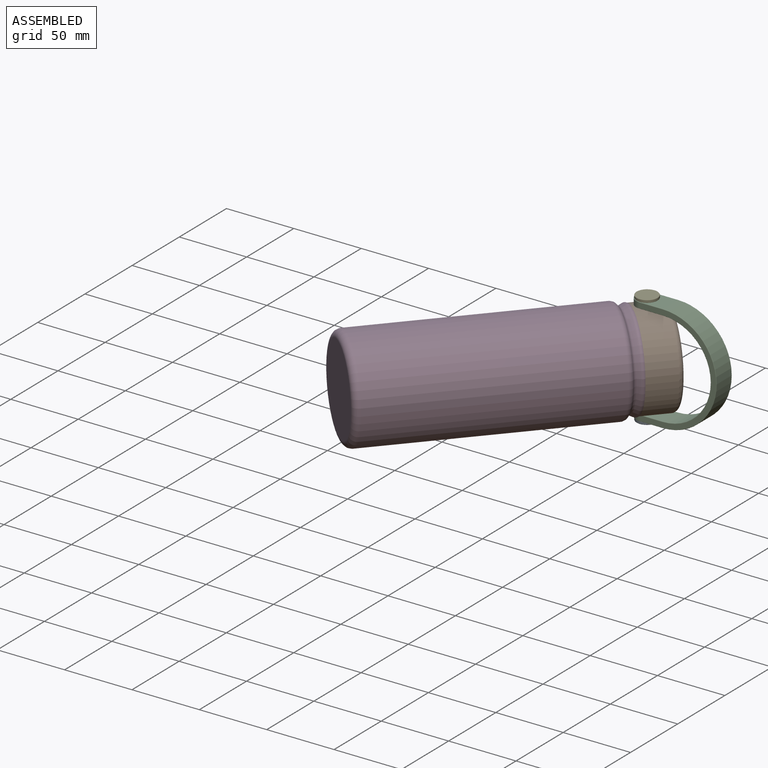
[diagram: assembled view]
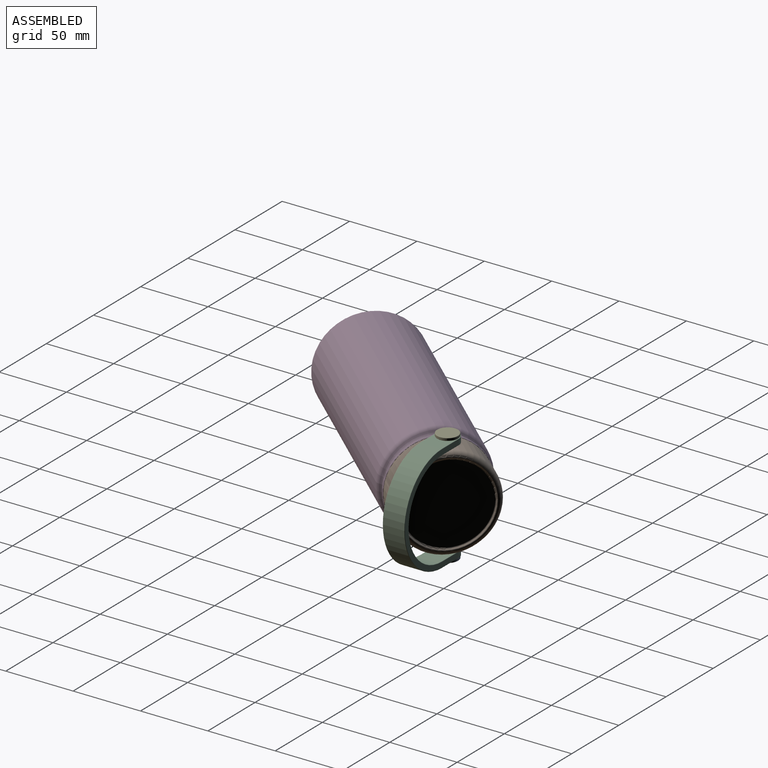
[diagram: assembled view, second angle]
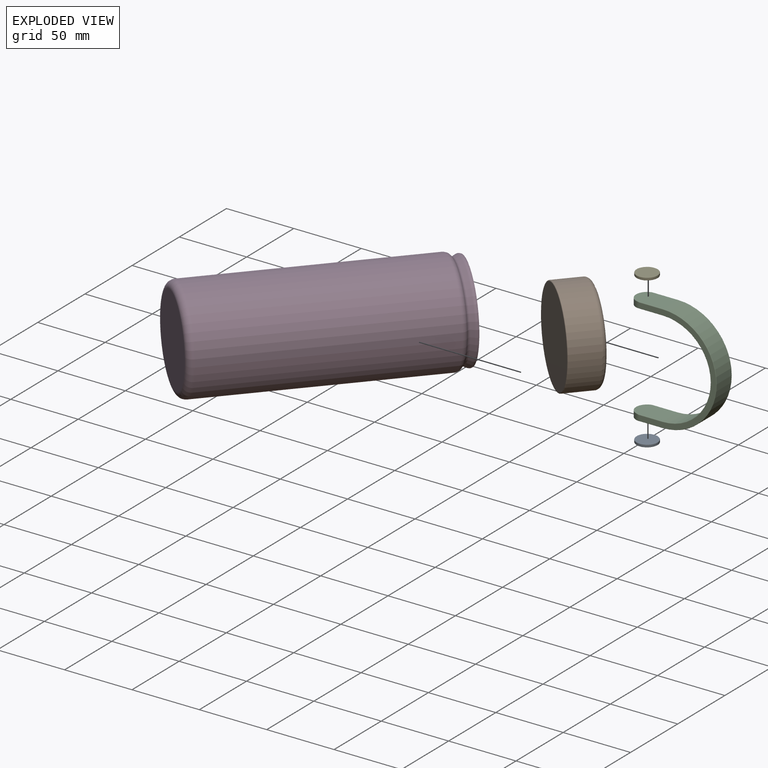
[diagram: exploded view]
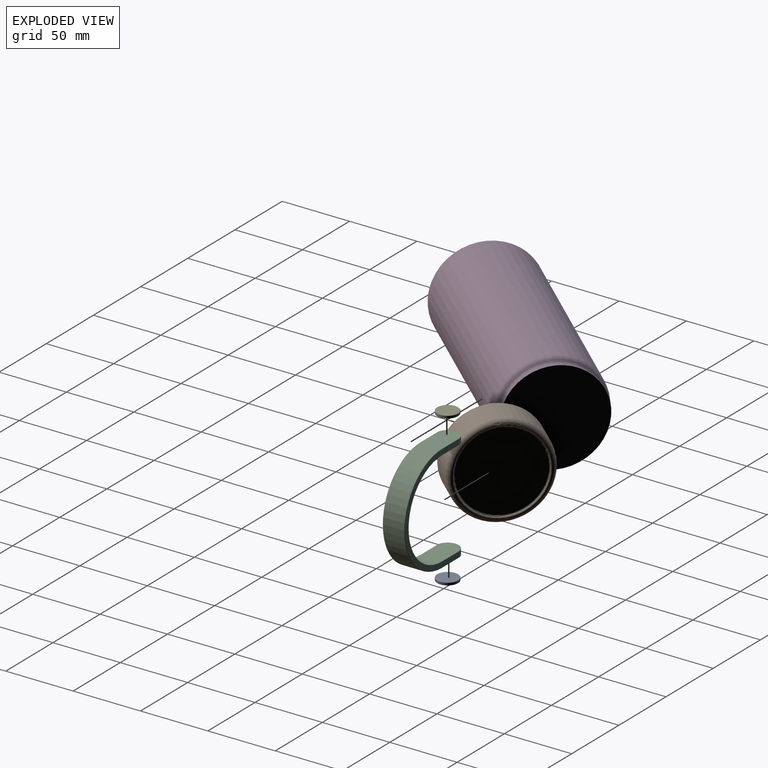
[diagram: exploded view, second angle]
ASSEMBLY  parts=5 mates=3
PART A: 5 faces, bbox 16.9x2x16.9 mm
  f0: cylinder r=7.82mm len=15.65mm, axis (0,1,0), area 73.7mm2, adj f3,f4
  f1: plane 15.14x15.14mm, normal (0,-1,0), area 180mm2, adj f4
  f2: plane 15.14x15.14mm, normal (0,1,0), area 180mm2, adj f3
  f3: torus R=7.57mm, axis (0,-1,0), area 19.4mm2, adj f0,f2
  f4: torus R=7.57mm, axis (0,-1,0), area 19.4mm2, adj f0,f1
PART B: 7 faces, bbox 75.4x75.4x25.4 mm
  f0: cylinder r=34.81mm len=69.62mm, axis (0,0,-1), area 4600mm2, adj f2,f3
  f1: plane 68.35x68.35mm, normal (0,0,-1), area 3669.3mm2, adj f3
  f2: torus R=31.33mm, axis (0,0,1), area 1152.1mm2, adj f0,f5
  f3: torus R=34.18mm, axis (0,0,1), area 216.7mm2, adj f0,f1
  f4: plane 58.8x58.8mm, normal (0,0,1), area 2715.4mm2, adj f6
  f5: torus R=31.33mm, axis (0,0,1), area 199.7mm2, adj f2,f6
  f6: torus R=29.4mm, axis (0,0,-1), area 236.6mm2, adj f4,f5
PART C: 22 faces, bbox 86.5x16.3x68.6 mm
  f0: cylinder r=0.25mm len=19.28mm, axis (0,0,1), area 7.3mm2, adj f13,f17,f19,f21
  f1: cylinder r=0.25mm len=19.28mm, axis (0,0,1), area 7.3mm2, adj f14,f15,f19,f21
  f2: cylinder r=0.25mm len=19.28mm, axis (0,0,1), area 7.3mm2, adj f3,f14,f16,f21
  f3: plane 25.4x15.77mm, normal (1,0,0), area 375.7mm2, adj f2,f4,f11,f21
  f4: cylinder r=0.25mm len=19.28mm, axis (0,0,1), area 7.3mm2, adj f3,f13,f18,f21
  f5: plane 25.4x15.77mm, normal (-1,0,0), area 375.7mm2, adj f6,f10,f11,f20
  f6: cylinder r=0.25mm len=19.28mm, axis (0,0,1), area 7.3mm2, adj f5,f14,f16,f20
  f7: cylinder r=0.25mm len=19.28mm, axis (0,0,1), area 7.3mm2, adj f8,f14,f15,f20
  f8: plane 25.4x15.77mm, normal (1,0,0), area 375.7mm2, adj f7,f9,f12,f20
  f9: cylinder r=0.25mm len=19.28mm, axis (0,0,1), area 7.3mm2, adj f8,f13,f17,f20
  f10: cylinder r=0.25mm len=19.28mm, axis (0,0,1), area 7.3mm2, adj f5,f13,f18,f20
  f11: cylinder r=35.56mm len=71.12mm, axis (0,1,0), area 1762.1mm2, adj f3,f5,f16,f18
  f12: cylinder r=39.95mm len=79.91mm, axis (0,1,0), area 1979.9mm2, adj f8,f15,f17,f19
  f13: plane 79.4x56.96mm, normal (0,-1,0), area 595.1mm2, adj f0,f4,f9,f10,f17,f18,f20,f21
  f14: plane 79.4x56.96mm, normal (0,1,0), area 595.1mm2, adj f1,f2,f6,f7,f15,f16,f20,f21
  f15: torus R=39.7mm, axis (0,-1,0), area 50mm2, adj f1,f7,f12,f14
  f16: torus R=35.81mm, axis (0,-1,0), area 44.7mm2, adj f2,f6,f11,f14
  f17: torus R=39.7mm, axis (0,-1,0), area 50mm2, adj f0,f9,f12,f13
  f18: torus R=35.81mm, axis (0,-1,0), area 44.7mm2, adj f4,f10,f11,f13
  f19: plane 25.4x15.77mm, normal (-1,0,0), area 375.7mm2, adj f0,f1,f12,f21
  f20: cylinder r=8.14mm len=16.28mm, axis (-1,0,0), area 111.3mm2, adj f5,f6,f7,f8,f9,f10,f13,f14
  f21: cylinder r=8.14mm len=16.28mm, axis (-1,0,0), area 111.3mm2, adj f0,f1,f2,f3,f4,f13,f14,f19
PART D: 8 faces, bbox 80x80x184.1 mm
  f0: cylinder r=36.96mm len=167.36mm, axis (0,0,-1), area 38862.4mm2, adj f2,f7
  f1: plane 63.75x63.75mm, normal (0,0,-1), area 3192.3mm2, adj f7
  f2: torus R=32.77mm, axis (0,0,1), area 979.7mm2, adj f0,f3
  f3: torus R=36.52mm, axis (0,0,1), area 572.4mm2, adj f2,f4
  f4: cone r=33.5mm half-angle=27.6deg, axis (0,0,1), area 665.7mm2, adj f3,f5
  f5: torus R=32.51mm, axis (0,0,1), area 583.2mm2, adj f4,f6
  f6: plane 69.88x69.88mm, normal (0,0,1), area 3834.8mm2, adj f5
  f7: torus R=31.88mm, axis (0,0,1), area 1760.4mm2, adj f0,f1
PART E: same geometry as A
PLACE A rot(axis=(0,0.71,0.71),180deg) t=(-216.31,-173.49,301.89)mm
PLACE B rot(axis=(-0.72,0.69,0.04),90.2deg) t=(-221.16,-183.47,342.62)mm fixed
PLACE C rot(axis=(0,1,0),90deg) t=(-199.05,-165.35,381.8)mm fixed
PLACE D rot(axis=(-0.72,0.69,0.04),90.2deg) t=(-342.34,-320.37,342.79)mm
PLACE E rot(axis=(0.58,0.58,0.58),120deg) t=(-216.31,-173.49,383.8)mm
MATE fastened A.f0 <-> C.f20  axis (0,0,1) through (-216.31,-173.49,301.89)mm
MATE fastened B.f0 <-> D.f4  axis (-0.66,-0.75,0) through (-220.74,-182.99,342.62)mm
MATE fastened E.f0 <-> C.f20  axis (0,0,-1) through (-216.31,-173.49,381.8)mm
